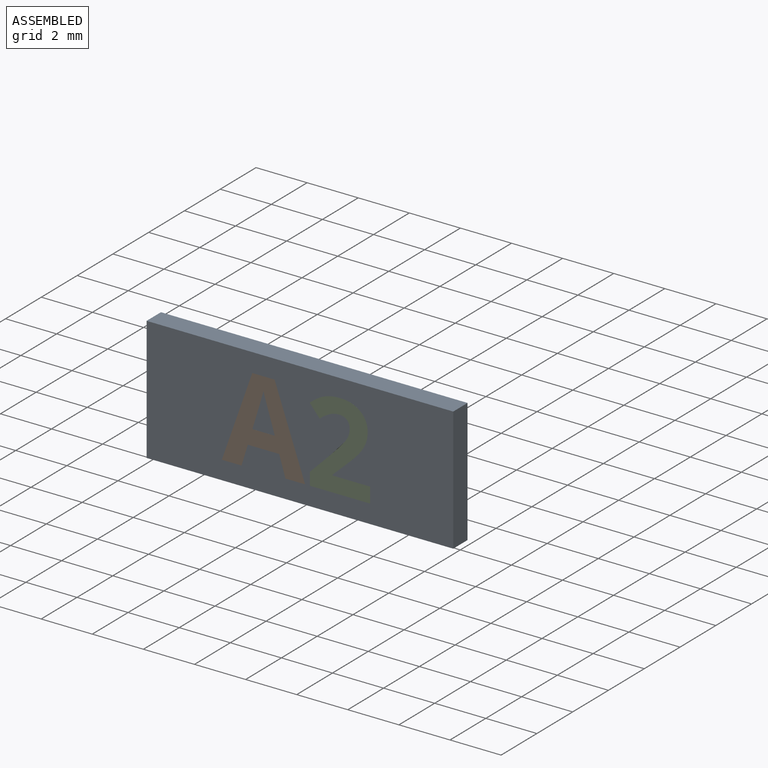
[diagram: assembled view]
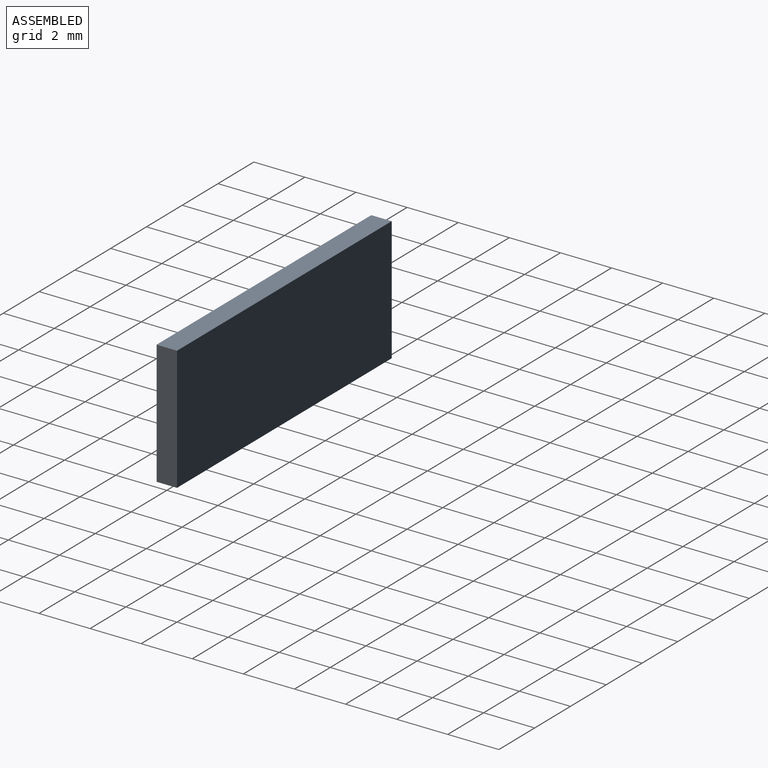
[diagram: assembled view, second angle]
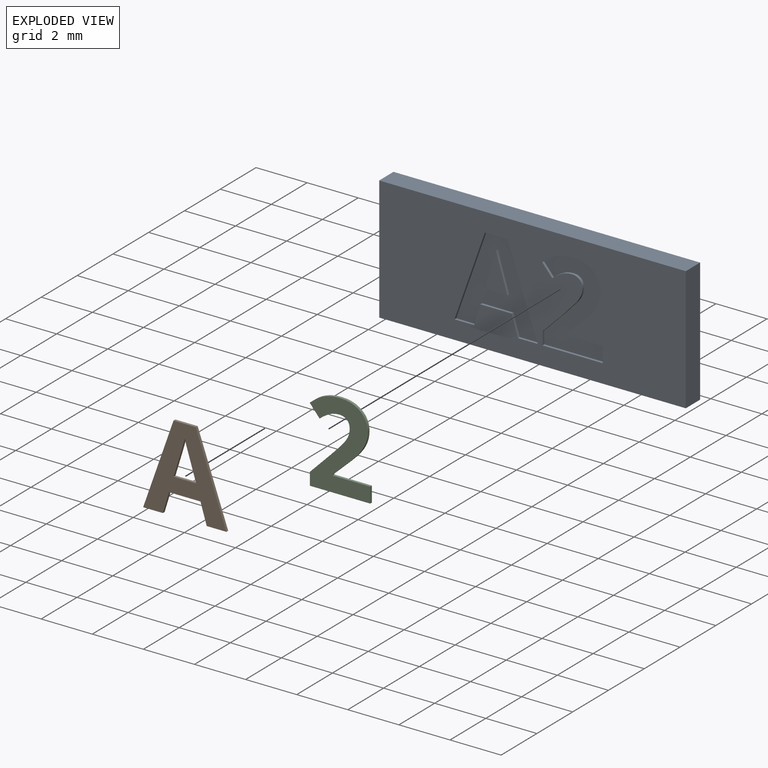
[diagram: exploded view]
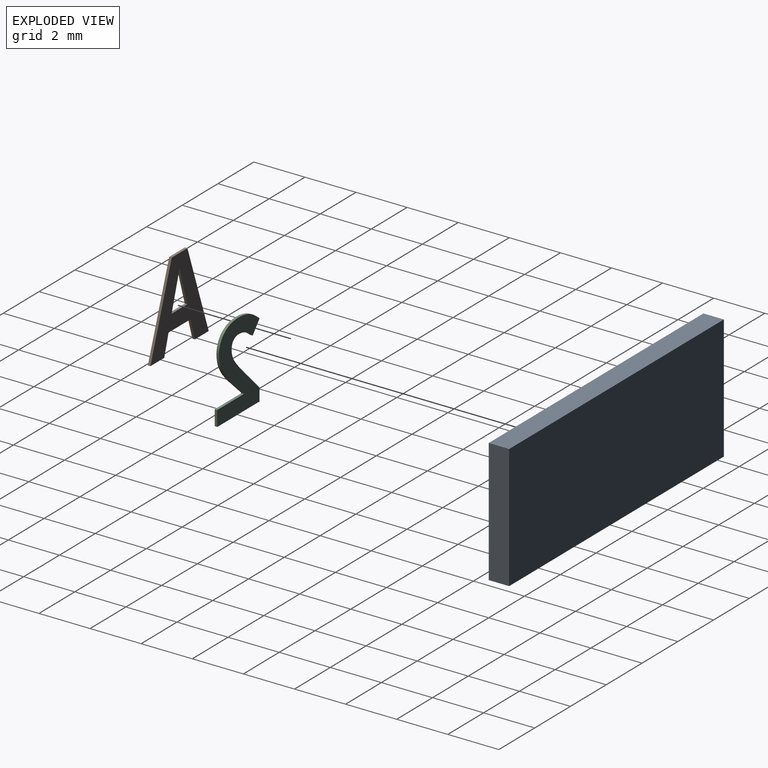
[diagram: exploded view, second angle]
ASSEMBLY  parts=3 mates=2
PART A: 45 faces, bbox 12x0.8x4.9 mm
  f0: plane 12x4.85mm, normal (0,-1,0), area 48.2mm2, adj f1,f2,f3,f4,f6,f7,f8,f9
  f1: plane 12x0.8mm, normal (0,0,-1), area 9.6mm2, adj f0,f2,f4,f5
  f2: plane 4.85x0.8mm, normal (1,0,0), area 3.9mm2, adj f0,f1,f3,f5
  f3: plane 12x0.8mm, normal (0,0,1), area 9.6mm2, adj f0,f2,f4,f5
  f4: plane 4.85x0.8mm, normal (-1,0,0), area 3.9mm2, adj f0,f1,f3,f5
  f5: plane 12x4.85mm, normal (0,1,0), area 58.2mm2, adj f1,f2,f3,f4
  f6: plane 0.77x0.1mm, normal (0,0,1), area 0.1mm2, adj f0,f7,f17,f18
  f7: plane 3.39x1.19mm, normal (-0.94,0,-0.33), area 0.4mm2, adj f0,f6,f8,f18
  f8: plane 0.87x0.1mm, normal (0,0,-1), area 0.1mm2, adj f0,f7,f9,f18
  f9: plane 3.39x1.19mm, normal (0.94,0,-0.33), area 0.4mm2, adj f0,f8,f10,f18
  f10: plane 0.77x0.1mm, normal (0,0,1), area 0.1mm2, adj f0,f9,f11,f18
  f11: plane 0.8x0.24mm, normal (-0.96,0,0.29), area 0.1mm2, adj f0,f10,f12,f18
  f12: plane 1.23x0.1mm, normal (0,0,1), area 0.1mm2, adj f0,f11,f17,f18
  f13: plane 0.88x0.1mm, normal (0,0,-1), area 0.1mm2, adj f14,f16,f18,f19
  f14: extruded ~1.46x0.44mm, area 0.2mm2, adj f13,f15,f18,f19
  f15: extruded ~0.23x0.1mm, area 0mm2, adj f14,f16,f18,f19
  f16: extruded ~1.23x0.38mm, area 0.1mm2, adj f13,f15,f18,f19
  f17: plane 0.8x0.24mm, normal (0.96,0,0.29), area 0.1mm2, adj f0,f6,f12,f18
  f18: plane 3.39x3.26mm, normal (0,-1,0), area 5.2mm2, adj f6,f7,f8,f9,f10,f11,f12,f13
  f19: plane 1.46x0.88mm, normal (0,-1,0), area 0.6mm2, adj f13,f14,f15,f16
  f20: plane 0.6x0.1mm, normal (-1,0,0), area 0.1mm2, adj f0,f21,f43,f44
  f21: plane 1.47x0.1mm, normal (0,0,-1), area 0.1mm2, adj f0,f20,f22,f44
  f22: plane 0.1x0.03mm, normal (-1,0,0), area 0mm2, adj f0,f21,f23,f44
  f23: plane 0.43x0.41mm, normal (-0.69,0,0.73), area 0.1mm2, adj f0,f22,f24,f44
  f24: extruded ~0.61x0.61mm, area 0.1mm2, adj f0,f23,f25,f44
  f25: extruded ~0.42x0.25mm, area 0mm2, adj f0,f24,f26,f44
  f26: extruded ~0.44x0.1mm, area 0mm2, adj f0,f25,f27,f44
  f27: extruded ~0.48x0.13mm, area 0.1mm2, adj f0,f26,f28,f44
  f28: extruded ~0.38x0.32mm, area 0.1mm2, adj f0,f27,f29,f44
  f29: extruded ~0.56x0.12mm, area 0.1mm2, adj f0,f28,f30,f44
  f30: extruded ~0.43x0.1mm, area 0mm2, adj f0,f29,f31,f44
  f31: extruded ~0.36x0.13mm, area 0mm2, adj f0,f30,f32,f44
  f32: extruded ~0.41x0.3mm, area 0.1mm2, adj f0,f31,f33,f44
  f33: plane 0.46x0.39mm, normal (0.76,0,0.65), area 0.1mm2, adj f0,f32,f34,f44
  f34: extruded ~0.39x0.26mm, area 0mm2, adj f0,f33,f35,f44
  f35: extruded ~0.38x0.1mm, area 0mm2, adj f0,f34,f36,f44
  f36: extruded ~0.3x0.1mm, area 0mm2, adj f0,f35,f37,f44
  f37: extruded ~0.3x0.11mm, area 0mm2, adj f0,f36,f38,f44
  f38: extruded ~0.26x0.1mm, area 0mm2, adj f0,f37,f39,f44
  f39: extruded ~0.28x0.17mm, area 0mm2, adj f0,f38,f40,f44
  f40: extruded ~0.53x0.49mm, area 0.1mm2, adj f0,f39,f41,f44
  f41: plane 0.86x0.85mm, normal (0.71,0,-0.7), area 0.1mm2, adj f0,f40,f42,f44
  f42: plane 0.5x0.1mm, normal (1,0,0), area 0mm2, adj f0,f41,f43,f44
  f43: plane 2.36x0.1mm, normal (0,0,1), area 0.2mm2, adj f0,f20,f42,f44
  f44: plane 3.42x2.37mm, normal (0,-1,0), area 4.2mm2, adj f20,f21,f22,f23,f24,f25,f26,f27
PART B: 14 faces, bbox 3.3x0.1x3.4 mm
  f0: plane 3.39x3.26mm, normal (0,-1,0), area 5.2mm2, adj f1,f2,f3,f4,f5,f6,f8,f9
  f1: plane 3.39x1.19mm, normal (0.94,0,0.33), area 0.4mm2, adj f0,f2,f7,f9
  f2: plane 0.87x0.1mm, normal (0,0,1), area 0.1mm2, adj f0,f1,f3,f7
  f3: plane 3.39x1.19mm, normal (-0.94,0,0.33), area 0.4mm2, adj f0,f2,f4,f7
  f4: plane 0.77x0.1mm, normal (0,0,-1), area 0.1mm2, adj f0,f3,f5,f7
  f5: plane 0.8x0.24mm, normal (0.96,0,-0.29), area 0.1mm2, adj f0,f4,f7,f8
  f6: extruded ~1.46x0.44mm, area 0.2mm2, adj f0,f7,f11,f12
  f7: plane 3.39x3.26mm, normal (0,1,0), area 5.2mm2, adj f1,f2,f3,f4,f5,f6,f8,f9
  f8: plane 1.23x0.1mm, normal (0,0,-1), area 0.1mm2, adj f0,f5,f7,f10
  f9: plane 0.77x0.1mm, normal (0,0,-1), area 0.1mm2, adj f0,f1,f7,f10
  f10: plane 0.8x0.24mm, normal (-0.96,0,-0.29), area 0.1mm2, adj f0,f7,f8,f9
  f11: extruded ~0.23x0.1mm, area 0mm2, adj f0,f6,f7,f13
  f12: plane 0.88x0.1mm, normal (0,0,1), area 0.1mm2, adj f0,f6,f7,f13
  f13: extruded ~1.23x0.38mm, area 0.1mm2, adj f0,f7,f11,f12
PART C: 26 faces, bbox 2.4x0.1x3.4 mm
  f0: plane 3.42x2.37mm, normal (0,-1,0), area 4.2mm2, adj f1,f2,f3,f4,f5,f6,f7,f8
  f1: plane 1.47x0.1mm, normal (0,0,1), area 0.1mm2, adj f0,f2,f22,f24
  f2: plane 0.1x0.03mm, normal (1,0,0), area 0mm2, adj f0,f1,f3,f22
  f3: plane 0.43x0.41mm, normal (0.69,0,-0.73), area 0.1mm2, adj f0,f2,f4,f22
  f4: extruded ~0.61x0.61mm, area 0.1mm2, adj f0,f3,f5,f22
  f5: extruded ~0.42x0.25mm, area 0mm2, adj f0,f4,f6,f22
  f6: extruded ~0.44x0.1mm, area 0mm2, adj f0,f5,f7,f22
  f7: extruded ~0.48x0.13mm, area 0.1mm2, adj f0,f6,f8,f22
  f8: extruded ~0.38x0.32mm, area 0.1mm2, adj f0,f7,f9,f22
  f9: extruded ~0.56x0.12mm, area 0.1mm2, adj f0,f8,f10,f22
  f10: extruded ~0.43x0.1mm, area 0mm2, adj f0,f9,f11,f22
  f11: extruded ~0.36x0.13mm, area 0mm2, adj f0,f10,f12,f22
  f12: extruded ~0.41x0.3mm, area 0.1mm2, adj f0,f11,f13,f22
  f13: plane 0.46x0.39mm, normal (-0.76,0,-0.65), area 0.1mm2, adj f0,f12,f14,f22
  f14: extruded ~0.39x0.26mm, area 0mm2, adj f0,f13,f15,f22
  f15: extruded ~0.38x0.1mm, area 0mm2, adj f0,f14,f16,f22
  f16: extruded ~0.3x0.1mm, area 0mm2, adj f0,f15,f17,f22
  f17: extruded ~0.3x0.11mm, area 0mm2, adj f0,f16,f18,f22
  f18: extruded ~0.26x0.1mm, area 0mm2, adj f0,f17,f19,f22
  f19: extruded ~0.28x0.17mm, area 0mm2, adj f0,f18,f20,f22
  f20: extruded ~0.53x0.49mm, area 0.1mm2, adj f0,f19,f21,f22
  f21: plane 0.86x0.85mm, normal (-0.71,0,0.7), area 0.1mm2, adj f0,f20,f22,f23
  f22: plane 3.42x2.37mm, normal (0,1,0), area 4.2mm2, adj f1,f2,f3,f4,f5,f6,f7,f8
  f23: plane 0.5x0.1mm, normal (-1,0,0), area 0mm2, adj f0,f21,f22,f25
  f24: plane 0.6x0.1mm, normal (1,0,0), area 0.1mm2, adj f0,f1,f22,f25
  f25: plane 2.36x0.1mm, normal (0,0,-1), area 0.2mm2, adj f0,f22,f23,f24
PLACE A t=(0,0.4,0.12)mm
PLACE B t=(0,0.4,0.12)mm
PLACE C t=(0.06,0.4,0.12)mm
MATE fastened C.f0 <-> A.f0  axis (0,-1,0) through (0.39,-0.4,-1.58)mm
MATE fastened B.f0 <-> A.f0  axis (0,-1,0) through (-3.05,-0.4,-1.58)mm
